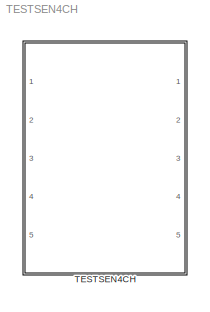
MODEL TESTSEN4CH
KIND library
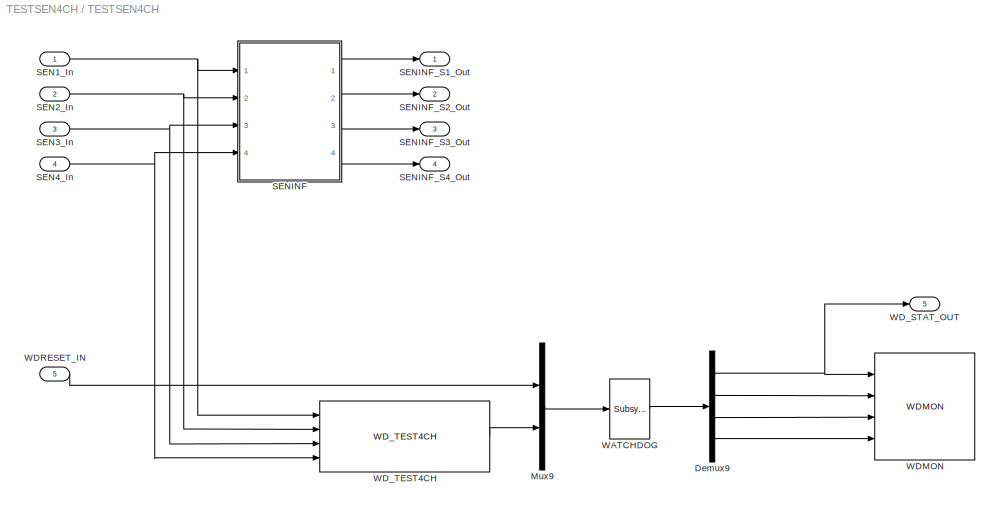
BLOCK [SubSystem] TESTSEN4CH
  Ports = [5, 5]
  RequestExecContextInheritance = off
  SID = 1
BLOCK [Demux] TESTSEN4CH/Demux9
  DisplayOption = bar
  Ports = [1, 4]
  SID = 35
BLOCK [Mux] TESTSEN4CH/Mux9
  DisplayOption = bar
  Inputs = 2
  Ports = [2, 1]
  SID = 63
BLOCK [Inport] TESTSEN4CH/SEN1_In
  IconDisplay = Port number
  SID = 85
BLOCK [Inport] TESTSEN4CH/SEN2_In
  IconDisplay = Port number
  Port = 2
  SID = 86
BLOCK [Inport] TESTSEN4CH/SEN3_In
  IconDisplay = Port number
  Port = 3
  SID = 87
BLOCK [Inport] TESTSEN4CH/SEN4_In
  IconDisplay = Port number
  Port = 4
  SID = 88
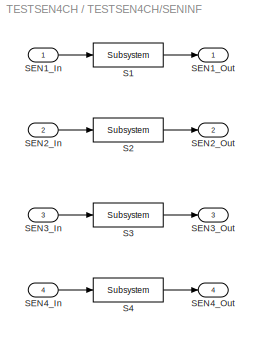
BLOCK [SubSystem] TESTSEN4CH/SENINF
  Ports = [4, 4]
  RequestExecContextInheritance = off
  SID = 41
BLOCK [Reference] TESTSEN4CH/SENINF/S1  REF=cdsFilt/Subsystem
  AttributesFormatString = %<Tag>
  Description = Purpose:                                                                                                                                                                                                                                  \nStandard CDS IIR filter module.                                                                                                                                     ...<+1302ch>  <repeated x4 — deduplicated; at blocks: S1, S2, S3, S4>
  Ports = [1, 1]
  SID = 43
  SourceBlock = cdsFilt/Subsystem
  SourceType = SubSystem
  Tag = cdsFilt
BLOCK [Reference] TESTSEN4CH/SENINF/S2  REF=cdsFilt/Subsystem
  AttributesFormatString = %<Tag>
  Ports = [1, 1]
  SID = 77
  SourceBlock = cdsFilt/Subsystem
  SourceType = SubSystem
  Tag = cdsFilt
BLOCK [Reference] TESTSEN4CH/SENINF/S3  REF=cdsFilt/Subsystem
  AttributesFormatString = %<Tag>
  Ports = [1, 1]
  SID = 81
  SourceBlock = cdsFilt/Subsystem
  SourceType = SubSystem
  Tag = cdsFilt
BLOCK [Reference] TESTSEN4CH/SENINF/S4  REF=cdsFilt/Subsystem
  AttributesFormatString = %<Tag>
  Ports = [1, 1]
  SID = 82
  SourceBlock = cdsFilt/Subsystem
  SourceType = SubSystem
  Tag = cdsFilt
BLOCK [Inport] TESTSEN4CH/SENINF/SEN1_In
  IconDisplay = Port number
  SID = 42
BLOCK [Outport] TESTSEN4CH/SENINF/SEN1_Out
  IconDisplay = Port number
  SID = 44
BLOCK [Inport] TESTSEN4CH/SENINF/SEN2_In
  IconDisplay = Port number
  Port = 2
  SID = 76
BLOCK [Outport] TESTSEN4CH/SENINF/SEN2_Out
  IconDisplay = Port number
  Port = 2
  SID = 78
BLOCK [Inport] TESTSEN4CH/SENINF/SEN3_In
  IconDisplay = Port number
  Port = 3
  SID = 79
BLOCK [Outport] TESTSEN4CH/SENINF/SEN3_Out
  IconDisplay = Port number
  Port = 3
  SID = 83
BLOCK [Inport] TESTSEN4CH/SENINF/SEN4_In
  IconDisplay = Port number
  Port = 4
  SID = 80
BLOCK [Outport] TESTSEN4CH/SENINF/SEN4_Out
  IconDisplay = Port number
  Port = 4
  SID = 84
BLOCK [Outport] TESTSEN4CH/SENINF_S1_Out
  IconDisplay = Port number
  SID = 137
BLOCK [Outport] TESTSEN4CH/SENINF_S2_Out
  IconDisplay = Port number
  Port = 2
  SID = 138
BLOCK [Outport] TESTSEN4CH/SENINF_S3_Out
  IconDisplay = Port number
  Port = 3
  SID = 139
BLOCK [Outport] TESTSEN4CH/SENINF_S4_Out
  IconDisplay = Port number
  Port = 4
  SID = 140
BLOCK [Reference] TESTSEN4CH/WATCHDOG  REF=cdsFunctionCall/Subsystem
  AttributesFormatString = %<Tag>\\n%<Description>
  Description = inline OSEMWATCHDOG <path>
  Ports = [1, 1]
  SID = 70
  SourceBlock = cdsFunctionCall/Subsystem
  SourceType = SubSystem
  Tag = cdsFunctionCall
BLOCK [Reference] TESTSEN4CH/WDMON  REF=VIS_LIB/WDMON
  Ports = [4]
  SID = 72
  SourceBlock = VIS_LIB/WDMON
  SourceType = SubSystem
BLOCK [Inport] TESTSEN4CH/WDRESET_IN
  IconDisplay = Port number
  Port = 5
  SID = 6
BLOCK [Outport] TESTSEN4CH/WD_STAT_OUT
  IconDisplay = Port number
  Port = 5
  SID = 74
BLOCK [Reference] TESTSEN4CH/WD_TEST4CH  REF=VIS_LIB/WD_TEST4CH
  Ports = [4, 1]
  SID = 89
  SourceBlock = VIS_LIB/WD_TEST4CH
  SourceType = SubSystem
NET TESTSEN4CH/Demux9:1 -> TESTSEN4CH/WDMON:1, TESTSEN4CH/WD_STAT_OUT:1
LINE TESTSEN4CH/Demux9:2 -> TESTSEN4CH/WDMON:2
LINE TESTSEN4CH/Demux9:3 -> TESTSEN4CH/WDMON:3
LINE TESTSEN4CH/Demux9:4 -> TESTSEN4CH/WDMON:4
LINE TESTSEN4CH/Mux9:1 -> TESTSEN4CH/WATCHDOG:1
NET TESTSEN4CH/SEN1_In:1 -> TESTSEN4CH/SENINF:1, TESTSEN4CH/WD_TEST4CH:1
NET TESTSEN4CH/SEN2_In:1 -> TESTSEN4CH/SENINF:2, TESTSEN4CH/WD_TEST4CH:2
NET TESTSEN4CH/SEN3_In:1 -> TESTSEN4CH/SENINF:3, TESTSEN4CH/WD_TEST4CH:3
NET TESTSEN4CH/SEN4_In:1 -> TESTSEN4CH/SENINF:4, TESTSEN4CH/WD_TEST4CH:4
LINE TESTSEN4CH/SENINF/S1:1 -> TESTSEN4CH/SENINF/SEN1_Out:1
LINE TESTSEN4CH/SENINF/S2:1 -> TESTSEN4CH/SENINF/SEN2_Out:1
LINE TESTSEN4CH/SENINF/S3:1 -> TESTSEN4CH/SENINF/SEN3_Out:1
LINE TESTSEN4CH/SENINF/S4:1 -> TESTSEN4CH/SENINF/SEN4_Out:1
LINE TESTSEN4CH/SENINF/SEN1_In:1 -> TESTSEN4CH/SENINF/S1:1
LINE TESTSEN4CH/SENINF/SEN2_In:1 -> TESTSEN4CH/SENINF/S2:1
LINE TESTSEN4CH/SENINF/SEN3_In:1 -> TESTSEN4CH/SENINF/S3:1
LINE TESTSEN4CH/SENINF/SEN4_In:1 -> TESTSEN4CH/SENINF/S4:1
LINE TESTSEN4CH/SENINF:1 -> TESTSEN4CH/SENINF_S1_Out:1
LINE TESTSEN4CH/SENINF:2 -> TESTSEN4CH/SENINF_S2_Out:1
LINE TESTSEN4CH/SENINF:3 -> TESTSEN4CH/SENINF_S3_Out:1
LINE TESTSEN4CH/SENINF:4 -> TESTSEN4CH/SENINF_S4_Out:1
LINE TESTSEN4CH/WATCHDOG:1 -> TESTSEN4CH/Demux9:1
LINE TESTSEN4CH/WDRESET_IN:1 -> TESTSEN4CH/Mux9:1
LINE TESTSEN4CH/WD_TEST4CH:1 -> TESTSEN4CH/Mux9:2
note: NET lines group one-source signal fan-out (src -> all destinations, sorted); 1:1 wires keep LINE
note: 1 file-system path scrubbed to <path> (not preserved elsewhere — flat text is the only slx artifact)
